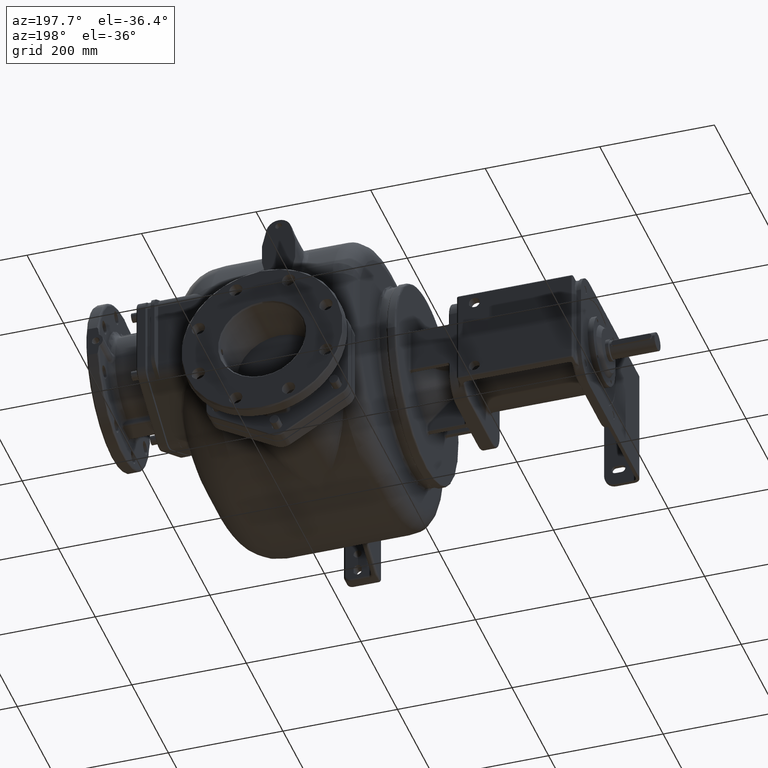
[diagram: clean part render]
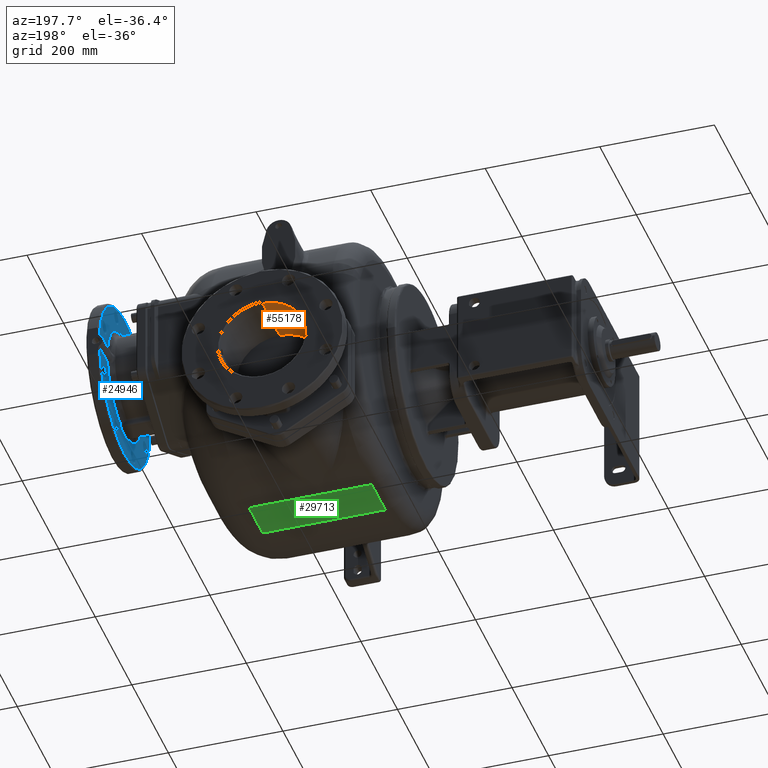
[diagram: same view with three faces highlighted in distinct colors, each labeled with its STEP entity id]
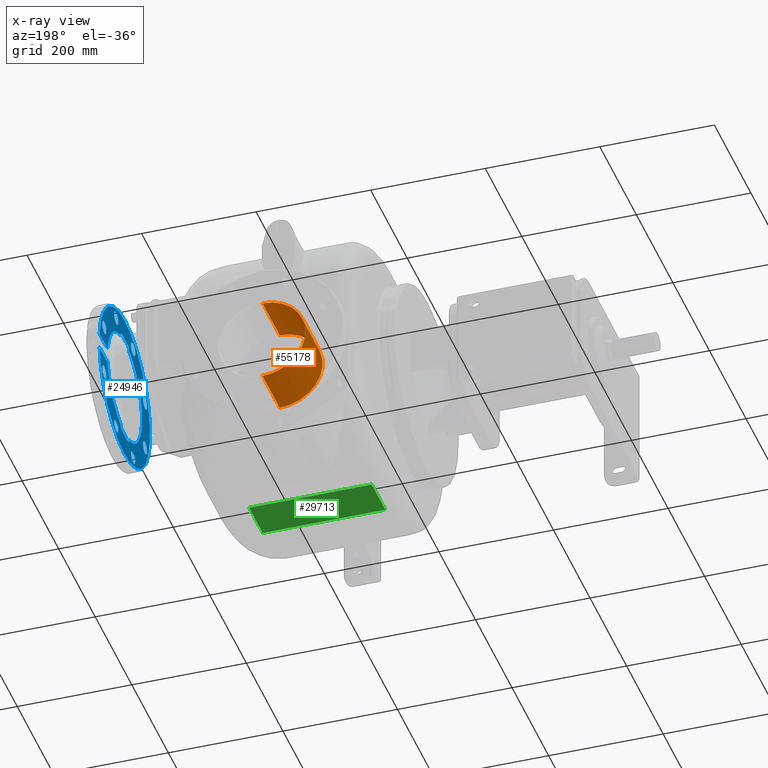
[diagram: x-ray of the same camera — body ghosted, the three highlighted faces saturated]
A machine part, auxiliary view with three faces highlighted in distinct colors.
The next image is the same camera in x-ray (body ghosted, the three faces saturated) — at least one of them is partly hidden behind the body in this view.
Their STEP definitions:

[orange] entity #55178 — the highlighted cylindrical surface (partial cylindrical patch) has radius 75 mm, axis along (0, 1, 0).
#51829=DIRECTION('',(0.E0,-1.E0,0.E0));
#51830=VECTOR('',#51829,9.4E1);
#51831=CARTESIAN_POINT('',(-3.5E1,6.48E2,-9.E1));
#51832=LINE('',#51831,#51830);
#52018=CARTESIAN_POINT('',(-3.5E1,6.48E2,-1.65E2));
#52019=DIRECTION('',(0.E0,1.E0,0.E0));
#52020=DIRECTION('',(0.E0,0.E0,-1.E0));
#52021=AXIS2_PLACEMENT_3D('',#52018,#52019,#52020);
#52023=DIRECTION('',(0.E0,-1.E0,0.E0));
#52024=VECTOR('',#52023,9.4E1);
#52025=CARTESIAN_POINT('',(-3.5E1,6.48E2,-2.4E2));
#52026=LINE('',#52025,#52024);
#52027=CARTESIAN_POINT('',(-3.5E1,5.54E2,-1.65E2));
#52028=DIRECTION('',(0.E0,-1.E0,0.E0));
#52029=DIRECTION('',(0.E0,0.E0,1.E0));
#52030=AXIS2_PLACEMENT_3D('',#52027,#52028,#52029);
#54464=CARTESIAN_POINT('',(-3.5E1,6.48E2,-9.E1));
#54465=CARTESIAN_POINT('',(-3.5E1,6.48E2,-2.4E2));
#54466=VERTEX_POINT('',#54464);
#54467=VERTEX_POINT('',#54465);
#54472=CARTESIAN_POINT('',(-3.5E1,5.54E2,-2.4E2));
#54473=CARTESIAN_POINT('',(-3.5E1,5.54E2,-9.E1));
#54474=VERTEX_POINT('',#54472);
#54475=VERTEX_POINT('',#54473);
#55166=CARTESIAN_POINT('',(-3.5E1,6.53E2,-1.65E2));
#55167=DIRECTION('',(0.E0,1.E0,0.E0));
#55168=DIRECTION('',(0.E0,0.E0,1.E0));
#55169=AXIS2_PLACEMENT_3D('',#55166,#55167,#55168);
#55170=CYLINDRICAL_SURFACE('',#55169,7.5E1);
#55171=ORIENTED_EDGE('',*,*,#55157,.F.);
#55172=ORIENTED_EDGE('',*,*,#55126,.T.);
#55174=ORIENTED_EDGE('',*,*,#55173,.F.);
#55175=ORIENTED_EDGE('',*,*,#55123,.F.);
#55176=EDGE_LOOP('',(#55171,#55172,#55174,#55175));
#55177=FACE_OUTER_BOUND('',#55176,.F.);
#55178=ADVANCED_FACE('',(#55177),#55170,.F.);
#52022=CIRCLE('',#52021,7.5E1);
#52031=CIRCLE('',#52030,7.5E1);
#55123=EDGE_CURVE('',#54466,#54475,#51832,.T.);
#55126=EDGE_CURVE('',#54467,#54474,#52026,.T.);
#55157=EDGE_CURVE('',#54467,#54466,#52022,.T.);
#55173=EDGE_CURVE('',#54475,#54474,#52031,.T.);

[blue] entity #24946 — the highlighted planar face has unit normal (1, 0, 0).
#135=CARTESIAN_POINT('',(2.815E2,4.1E2,-2.6E1));
#136=DIRECTION('',(-1.E0,0.E0,0.E0));
#137=DIRECTION('',(0.E0,9.950613756133E-1,-9.926156739977E-2));
#138=AXIS2_PLACEMENT_3D('',#135,#136,#137);
#532=DIRECTION('',(0.E0,-1.E0,0.E0));
#533=VECTOR('',#532,4.381600052251E1);
#534=CARTESIAN_POINT('',(2.815E2,5.478160005224E2,-3.974772708487E1));
#535=LINE('',#534,#533);
#536=CARTESIAN_POINT('',(2.815E2,4.26E2,-1.17E2));
#537=DIRECTION('',(1.E0,0.E0,0.E0));
#538=DIRECTION('',(0.E0,0.E0,-1.E0));
#539=AXIS2_PLACEMENT_3D('',#536,#537,#538);
#541=DIRECTION('',(0.E0,1.E0,0.E0));
#542=VECTOR('',#541,3.2E1);
#543=CARTESIAN_POINT('',(2.815E2,3.94E2,-1.25E2));
#544=LINE('',#543,#542);
#545=CARTESIAN_POINT('',(2.815E2,3.94E2,-1.17E2));
#546=DIRECTION('',(1.E0,0.E0,0.E0));
#547=DIRECTION('',(0.E0,-9.931808841819E-1,-1.165835807291E-1));
#548=AXIS2_PLACEMENT_3D('',#545,#546,#547);
#550=CARTESIAN_POINT('',(2.815E2,3.94E2,6.5E1));
#551=DIRECTION('',(-1.E0,0.E0,0.E0));
#552=DIRECTION('',(0.E0,-9.931808841819E-1,1.165835807297E-1));
#553=AXIS2_PLACEMENT_3D('',#550,#551,#552);
#555=DIRECTION('',(0.E0,1.E0,0.E0));
#556=VECTOR('',#555,3.2E1);
#557=CARTESIAN_POINT('',(2.815E2,3.94E2,7.3E1));
#558=LINE('',#557,#556);
#559=CARTESIAN_POINT('',(2.815E2,4.26E2,6.5E1));
#560=DIRECTION('',(-1.E0,0.E0,0.E0));
#561=DIRECTION('',(0.E0,0.E0,1.E0));
#562=AXIS2_PLACEMENT_3D('',#559,#560,#561);
#564=DIRECTION('',(0.E0,1.E0,0.E0));
#565=VECTOR('',#564,4.381600052251E1);
#566=CARTESIAN_POINT('',(2.815E2,5.039999999999E2,-1.225227291513E1));
#567=LINE('',#566,#565);
#568=CARTESIAN_POINT('',(2.815E2,3.638866464E2,8.532748366761E1));
#569=DIRECTION('',(-1.E0,0.E0,0.E0));
#570=DIRECTION('',(0.E0,0.E0,-1.E0));
#571=AXIS2_PLACEMENT_3D('',#568,#569,#570);
#573=CARTESIAN_POINT('',(2.815E2,3.638866464E2,8.532748366761E1));
#574=DIRECTION('',(-1.E0,0.E0,0.E0));
#575=DIRECTION('',(0.E0,0.E0,1.E0));
#576=AXIS2_PLACEMENT_3D('',#573,#574,#575);
#578=CARTESIAN_POINT('',(2.815E2,2.986725163324E2,2.011335359999E1));
#579=DIRECTION('',(-1.E0,0.E0,0.E0));
#580=DIRECTION('',(0.E0,7.071067811866E-1,-7.071067811865E-1));
#581=AXIS2_PLACEMENT_3D('',#578,#579,#580);
#583=CARTESIAN_POINT('',(2.815E2,2.986725163324E2,2.011335359999E1));
#584=DIRECTION('',(-1.E0,0.E0,0.E0));
#585=DIRECTION('',(0.E0,-7.071067811865E-1,7.071067811865E-1));
#586=AXIS2_PLACEMENT_3D('',#583,#584,#585);
#588=CARTESIAN_POINT('',(2.815E2,2.986725163324E2,-7.211335359999E1));
#589=DIRECTION('',(-1.E0,0.E0,0.E0));
#590=DIRECTION('',(0.E0,1.E0,0.E0));
#591=AXIS2_PLACEMENT_3D('',#588,#589,#590);
#593=CARTESIAN_POINT('',(2.815E2,2.986725163324E2,-7.211335359999E1));
#594=DIRECTION('',(-1.E0,0.E0,0.E0));
#595=DIRECTION('',(0.E0,-1.E0,0.E0));
#596=AXIS2_PLACEMENT_3D('',#593,#594,#595);
#598=CARTESIAN_POINT('',(2.815E2,3.638866464E2,-1.373274836676E2));
#599=DIRECTION('',(-1.E0,0.E0,0.E0));
#600=DIRECTION('',(0.E0,7.071067811865E-1,7.071067811865E-1));
#601=AXIS2_PLACEMENT_3D('',#598,#599,#600);
#603=CARTESIAN_POINT('',(2.815E2,3.638866464E2,-1.373274836676E2));
#604=DIRECTION('',(-1.E0,0.E0,0.E0));
#605=DIRECTION('',(0.E0,-7.071067811865E-1,-7.071067811865E-1));
#606=AXIS2_PLACEMENT_3D('',#603,#604,#605);
#608=CARTESIAN_POINT('',(2.815E2,4.561133536E2,-1.373274836676E2));
#609=DIRECTION('',(-1.E0,0.E0,0.E0));
#610=DIRECTION('',(0.E0,0.E0,1.E0));
#611=AXIS2_PLACEMENT_3D('',#608,#609,#610);
#613=CARTESIAN_POINT('',(2.815E2,4.561133536E2,-1.373274836676E2));
#614=DIRECTION('',(-1.E0,0.E0,0.E0));
#615=DIRECTION('',(0.E0,0.E0,-1.E0));
#616=AXIS2_PLACEMENT_3D('',#613,#614,#615);
#618=CARTESIAN_POINT('',(2.815E2,5.213274836676E2,-7.211335359999E1));
#619=DIRECTION('',(-1.E0,0.E0,0.E0));
#620=DIRECTION('',(0.E0,-7.071067811866E-1,7.071067811865E-1));
#621=AXIS2_PLACEMENT_3D('',#618,#619,#620);
#623=CARTESIAN_POINT('',(2.815E2,5.213274836676E2,-7.211335359999E1));
#624=DIRECTION('',(-1.E0,0.E0,0.E0));
#625=DIRECTION('',(0.E0,7.071067811865E-1,-7.071067811865E-1));
#626=AXIS2_PLACEMENT_3D('',#623,#624,#625);
#628=CARTESIAN_POINT('',(2.815E2,5.213274836676E2,2.011335359999E1));
#629=DIRECTION('',(-1.E0,0.E0,0.E0));
#630=DIRECTION('',(0.E0,-1.E0,0.E0));
#631=AXIS2_PLACEMENT_3D('',#628,#629,#630);
#633=CARTESIAN_POINT('',(2.815E2,5.213274836676E2,2.011335359999E1));
#634=DIRECTION('',(-1.E0,0.E0,0.E0));
#635=DIRECTION('',(0.E0,1.E0,0.E0));
#636=AXIS2_PLACEMENT_3D('',#633,#634,#635);
#638=CARTESIAN_POINT('',(2.815E2,4.561133536E2,8.532748366761E1));
#639=DIRECTION('',(-1.E0,0.E0,0.E0));
#640=DIRECTION('',(0.E0,-7.071067811865E-1,-7.071067811865E-1));
#641=AXIS2_PLACEMENT_3D('',#638,#639,#640);
#643=CARTESIAN_POINT('',(2.815E2,4.561133536E2,8.532748366761E1));
#644=DIRECTION('',(-1.E0,0.E0,0.E0));
#645=DIRECTION('',(0.E0,7.071067811865E-1,7.071067811865E-1));
#646=AXIS2_PLACEMENT_3D('',#643,#644,#645);
#1156=CARTESIAN_POINT('',(2.815E2,4.1E2,-2.6E1));
#1157=DIRECTION('',(1.E0,0.E0,0.E0));
#1158=DIRECTION('',(0.E0,9.894736842105E-1,1.447129166833E-1));
#1159=AXIS2_PLACEMENT_3D('',#1156,#1157,#1158);
#1292=CARTESIAN_POINT('',(2.815E2,3.860545529266E2,6.593266864629E1));
#1294=CARTESIAN_POINT('',(2.815E2,4.1E2,-2.6E1));
#1295=DIRECTION('',(1.E0,0.E0,0.E0));
#1296=DIRECTION('',(0.E0,-2.520573376169E-1,9.677123015408E-1));
#1297=AXIS2_PLACEMENT_3D('',#1294,#1295,#1296);
#1306=CARTESIAN_POINT('',(2.815E2,3.860545529266E2,-1.179326686463E2));
#20769=CARTESIAN_POINT('',(2.815E2,4.1E2,-2.6E1));
#20770=DIRECTION('',(1.E0,0.E0,0.E0));
#20771=DIRECTION('',(0.E0,2.520573376159E-1,-9.677123015411E-1));
#20772=AXIS2_PLACEMENT_3D('',#20769,#20770,#20771);
#23158=CARTESIAN_POINT('',(2.815E2,5.039999999997E2,-3.974772708487E1));
#23160=VERTEX_POINT('',#23158);
#23167=VERTEX_POINT('',#1306);
#23170=CARTESIAN_POINT('',(2.815E2,3.94E2,-1.25E2));
#23171=VERTEX_POINT('',#23170);
#23174=CARTESIAN_POINT('',(2.815E2,4.26E2,-1.25E2));
#23175=VERTEX_POINT('',#23174);
#23178=CARTESIAN_POINT('',(2.815E2,4.339454470734E2,-1.179326686461E2));
#23179=VERTEX_POINT('',#23178);
#23212=VERTEX_POINT('',#1292);
#23214=CARTESIAN_POINT('',(2.815E2,3.94E2,7.3E1));
#23215=VERTEX_POINT('',#23214);
#23218=CARTESIAN_POINT('',(2.815E2,4.26E2,7.3E1));
#23219=VERTEX_POINT('',#23218);
#23222=CARTESIAN_POINT('',(2.815E2,4.339454470734E2,6.593266864604E1));
#23223=VERTEX_POINT('',#23222);
#23257=CARTESIAN_POINT('',(2.815E2,5.039999999999E2,-1.225227291513E1));
#23258=CARTESIAN_POINT('',(2.815E2,5.478160005224E2,-1.225227291513E1));
#23259=VERTEX_POINT('',#23257);
#23260=VERTEX_POINT('',#23258);
#23263=CARTESIAN_POINT('',(2.815E2,5.478160005224E2,-3.974772708487E1));
#23264=VERTEX_POINT('',#23263);
#23403=CARTESIAN_POINT('',(2.815E2,3.638866464E2,7.382748366761E1));
#23404=CARTESIAN_POINT('',(2.815E2,3.638866464E2,9.682748366761E1));
#23405=VERTEX_POINT('',#23403);
#23406=VERTEX_POINT('',#23404);
#23411=CARTESIAN_POINT('',(2.815E2,3.068042443160E2,1.198162561635E1));
#23412=CARTESIAN_POINT('',(2.815E2,2.905407883487E2,2.824508158364E1));
#23413=VERTEX_POINT('',#23411);
#23414=VERTEX_POINT('',#23412);
#23419=CARTESIAN_POINT('',(2.815E2,3.101725163324E2,-7.211335359999E1));
#23420=CARTESIAN_POINT('',(2.815E2,2.871725163324E2,-7.211335359999E1));
#23421=VERTEX_POINT('',#23419);
#23422=VERTEX_POINT('',#23420);
#23427=CARTESIAN_POINT('',(2.815E2,3.720183743837E2,-1.291957556840E2));
#23428=CARTESIAN_POINT('',(2.815E2,3.557549184164E2,-1.454592116513E2));
#23429=VERTEX_POINT('',#23427);
#23430=VERTEX_POINT('',#23428);
#23435=CARTESIAN_POINT('',(2.815E2,4.561133536E2,-1.258274836676E2));
#23436=CARTESIAN_POINT('',(2.815E2,4.561133536E2,-1.488274836676E2));
#23437=VERTEX_POINT('',#23435);
#23438=VERTEX_POINT('',#23436);
#23443=CARTESIAN_POINT('',(2.815E2,5.131957556840E2,-6.398162561635E1));
#23444=CARTESIAN_POINT('',(2.815E2,5.294592116513E2,-8.024508158364E1));
#23445=VERTEX_POINT('',#23443);
#23446=VERTEX_POINT('',#23444);
#23451=CARTESIAN_POINT('',(2.815E2,5.098274836676E2,2.011335359999E1));
#23452=CARTESIAN_POINT('',(2.815E2,5.328274836676E2,2.011335359999E1));
#23453=VERTEX_POINT('',#23451);
#23454=VERTEX_POINT('',#23452);
#23459=CARTESIAN_POINT('',(2.815E2,4.479816256163E2,7.719575568396E1));
#23460=CARTESIAN_POINT('',(2.815E2,4.642450815836E2,9.345921165126E1));
#23461=VERTEX_POINT('',#23459);
#23462=VERTEX_POINT('',#23460);
#24869=CARTESIAN_POINT('',(2.815E2,4.1E2,-2.6E1));
#24870=DIRECTION('',(1.E0,0.E0,0.E0));
#24871=DIRECTION('',(0.E0,-1.E0,0.E0));
#24872=AXIS2_PLACEMENT_3D('',#24869,#24870,#24871);
#24873=PLANE('',#24872);
#24874=ORIENTED_EDGE('',*,*,#24450,.F.);
#24876=ORIENTED_EDGE('',*,*,#24875,.T.);
#24878=ORIENTED_EDGE('',*,*,#24877,.F.);
#24880=ORIENTED_EDGE('',*,*,#24879,.F.);
#24882=ORIENTED_EDGE('',*,*,#24881,.F.);
#24884=ORIENTED_EDGE('',*,*,#24883,.F.);
#24886=ORIENTED_EDGE('',*,*,#24885,.F.);
#24888=ORIENTED_EDGE('',*,*,#24887,.T.);
#24890=ORIENTED_EDGE('',*,*,#24889,.T.);
#24892=ORIENTED_EDGE('',*,*,#24891,.T.);
#24894=ORIENTED_EDGE('',*,*,#24893,.F.);
#24895=ORIENTED_EDGE('',*,*,#24860,.T.);
#24896=EDGE_LOOP('',(#24874,#24876,#24878,#24880,#24882,#24884,#24886,#24888,
#24890,#24892,#24894,#24895));
#24897=FACE_OUTER_BOUND('',#24896,.F.);
#24899=ORIENTED_EDGE('',*,*,#24898,.T.);
#24901=ORIENTED_EDGE('',*,*,#24900,.T.);
#24902=EDGE_LOOP('',(#24899,#24901));
#24903=FACE_BOUND('',#24902,.F.);
#24905=ORIENTED_EDGE('',*,*,#24904,.T.);
#24907=ORIENTED_EDGE('',*,*,#24906,.T.);
#24908=EDGE_LOOP('',(#24905,#24907));
#24909=FACE_BOUND('',#24908,.F.);
#24911=ORIENTED_EDGE('',*,*,#24910,.T.);
#24913=ORIENTED_EDGE('',*,*,#24912,.T.);
#24914=EDGE_LOOP('',(#24911,#24913));
#24915=FACE_BOUND('',#24914,.F.);
#24917=ORIENTED_EDGE('',*,*,#24916,.T.);
#24919=ORIENTED_EDGE('',*,*,#24918,.T.);
#24920=EDGE_LOOP('',(#24917,#24919));
#24921=FACE_BOUND('',#24920,.F.);
#24923=ORIENTED_EDGE('',*,*,#24922,.T.);
#24925=ORIENTED_EDGE('',*,*,#24924,.T.);
#24926=EDGE_LOOP('',(#24923,#24925));
#24927=FACE_BOUND('',#24926,.F.);
#24929=ORIENTED_EDGE('',*,*,#24928,.T.);
#24931=ORIENTED_EDGE('',*,*,#24930,.T.);
#24932=EDGE_LOOP('',(#24929,#24931));
#24933=FACE_BOUND('',#24932,.F.);
#24935=ORIENTED_EDGE('',*,*,#24934,.T.);
#24937=ORIENTED_EDGE('',*,*,#24936,.T.);
#24938=EDGE_LOOP('',(#24935,#24937));
#24939=FACE_BOUND('',#24938,.F.);
#24941=ORIENTED_EDGE('',*,*,#24940,.T.);
#24943=ORIENTED_EDGE('',*,*,#24942,.T.);
#24944=EDGE_LOOP('',(#24941,#24943));
#24945=FACE_BOUND('',#24944,.F.);
#24946=ADVANCED_FACE('',(#24897,#24903,#24909,#24915,#24921,#24927,#24933,
#24939,#24945),#24873,.F.);
#139=CIRCLE('',#138,1.385E2);
#540=CIRCLE('',#539,8.E0);
#549=CIRCLE('',#548,8.E0);
#554=CIRCLE('',#553,8.E0);
#563=CIRCLE('',#562,8.E0);
#572=CIRCLE('',#571,1.15E1);
#577=CIRCLE('',#576,1.15E1);
#582=CIRCLE('',#581,1.15E1);
#587=CIRCLE('',#586,1.15E1);
#592=CIRCLE('',#591,1.15E1);
#597=CIRCLE('',#596,1.15E1);
#602=CIRCLE('',#601,1.15E1);
#607=CIRCLE('',#606,1.15E1);
#612=CIRCLE('',#611,1.15E1);
#617=CIRCLE('',#616,1.15E1);
#622=CIRCLE('',#621,1.15E1);
#627=CIRCLE('',#626,1.15E1);
#632=CIRCLE('',#631,1.15E1);
#637=CIRCLE('',#636,1.15E1);
#642=CIRCLE('',#641,1.15E1);
#647=CIRCLE('',#646,1.15E1);
#1160=CIRCLE('',#1159,9.5E1);
#1298=CIRCLE('',#1297,9.5E1);
#20773=CIRCLE('',#20772,9.5E1);
#24450=EDGE_CURVE('',#23264,#23260,#139,.T.);
#24860=EDGE_CURVE('',#23259,#23260,#567,.T.);
#24875=EDGE_CURVE('',#23264,#23160,#535,.T.);
#24877=EDGE_CURVE('',#23179,#23160,#20773,.T.);
#24879=EDGE_CURVE('',#23175,#23179,#540,.T.);
#24881=EDGE_CURVE('',#23171,#23175,#544,.T.);
#24883=EDGE_CURVE('',#23167,#23171,#549,.T.);
#24885=EDGE_CURVE('',#23212,#23167,#1298,.T.);
#24887=EDGE_CURVE('',#23212,#23215,#554,.T.);
#24889=EDGE_CURVE('',#23215,#23219,#558,.T.);
#24891=EDGE_CURVE('',#23219,#23223,#563,.T.);
#24893=EDGE_CURVE('',#23259,#23223,#1160,.T.);
#24898=EDGE_CURVE('',#23405,#23406,#572,.T.);
#24900=EDGE_CURVE('',#23406,#23405,#577,.T.);
#24904=EDGE_CURVE('',#23413,#23414,#582,.T.);
#24906=EDGE_CURVE('',#23414,#23413,#587,.T.);
#24910=EDGE_CURVE('',#23421,#23422,#592,.T.);
#24912=EDGE_CURVE('',#23422,#23421,#597,.T.);
#24916=EDGE_CURVE('',#23429,#23430,#602,.T.);
#24918=EDGE_CURVE('',#23430,#23429,#607,.T.);
#24922=EDGE_CURVE('',#23437,#23438,#612,.T.);
#24924=EDGE_CURVE('',#23438,#23437,#617,.T.);
#24928=EDGE_CURVE('',#23445,#23446,#622,.T.);
#24930=EDGE_CURVE('',#23446,#23445,#627,.T.);
#24934=EDGE_CURVE('',#23453,#23454,#632,.T.);
#24936=EDGE_CURVE('',#23454,#23453,#637,.T.);
#24940=EDGE_CURVE('',#23461,#23462,#642,.T.);
#24942=EDGE_CURVE('',#23462,#23461,#647,.T.);

[green] entity #29713 — the highlighted planar face has unit normal (0, 0, -1).
#4371=DIRECTION('',(1.E0,2.430223350876E-12,0.E0));
#4372=VECTOR('',#4371,8.499999971841E1);
#4373=CARTESIAN_POINT('',(-1.2E2,3.169999999998E2,-2.51E2));
#4374=LINE('',#4373,#4372);
#4375=DIRECTION('',(0.E0,-1.E0,0.E0));
#4376=VECTOR('',#4375,7.399999999978E1);
#4377=CARTESIAN_POINT('',(-1.2E2,3.169999999998E2,-2.51E2));
#4378=LINE('',#4377,#4376);
#4379=DIRECTION('',(0.E0,1.E0,0.E0));
#4380=VECTOR('',#4379,7.399999999971E1);
#4381=CARTESIAN_POINT('',(9.4E1,2.43E2,-2.51E2));
#4382=LINE('',#4381,#4380);
#4383=DIRECTION('',(1.E0,-2.240247603547E-12,0.E0));
#4384=VECTOR('',#4383,1.290000002816E2);
#4385=CARTESIAN_POINT('',(-3.500000028159E1,3.17E2,-2.51E2));
#4386=LINE('',#4385,#4384);
#4497=CARTESIAN_POINT('',(-3.500000028159E1,3.17E2,-2.51E2));
#7529=DIRECTION('',(1.E0,-5.046845599791E-14,0.E0));
#7530=VECTOR('',#7529,2.14E2);
#7531=CARTESIAN_POINT('',(-1.2E2,2.43E2,-2.51E2));
#7532=LINE('',#7531,#7530);
#21623=CARTESIAN_POINT('',(-1.2E2,2.43E2,-2.51E2));
#21624=CARTESIAN_POINT('',(9.4E1,2.43E2,-2.51E2));
#21625=VERTEX_POINT('',#21623);
#21626=VERTEX_POINT('',#21624);
#21713=CARTESIAN_POINT('',(-1.2E2,3.169999999998E2,-2.51E2));
#21714=VERTEX_POINT('',#21713);
#21731=CARTESIAN_POINT('',(9.4E1,3.169999999997E2,-2.51E2));
#21732=VERTEX_POINT('',#21731);
#21783=VERTEX_POINT('',#4497);
#29697=CARTESIAN_POINT('',(-1.56E2,3.17E2,-2.51E2));
#29698=DIRECTION('',(0.E0,0.E0,-1.E0));
#29699=DIRECTION('',(0.E0,-1.E0,0.E0));
#29700=AXIS2_PLACEMENT_3D('',#29697,#29698,#29699);
#29701=PLANE('',#29700);
#29703=ORIENTED_EDGE('',*,*,#29702,.F.);
#29705=ORIENTED_EDGE('',*,*,#29704,.T.);
#29707=ORIENTED_EDGE('',*,*,#29706,.T.);
#29708=ORIENTED_EDGE('',*,*,#29691,.T.);
#29710=ORIENTED_EDGE('',*,*,#29709,.F.);
#29711=EDGE_LOOP('',(#29703,#29705,#29707,#29708,#29710));
#29712=FACE_OUTER_BOUND('',#29711,.F.);
#29713=ADVANCED_FACE('',(#29712),#29701,.T.);
#29691=EDGE_CURVE('',#21626,#21732,#4382,.T.);
#29702=EDGE_CURVE('',#21714,#21783,#4374,.T.);
#29704=EDGE_CURVE('',#21714,#21625,#4378,.T.);
#29706=EDGE_CURVE('',#21625,#21626,#7532,.T.);
#29709=EDGE_CURVE('',#21783,#21732,#4386,.T.);